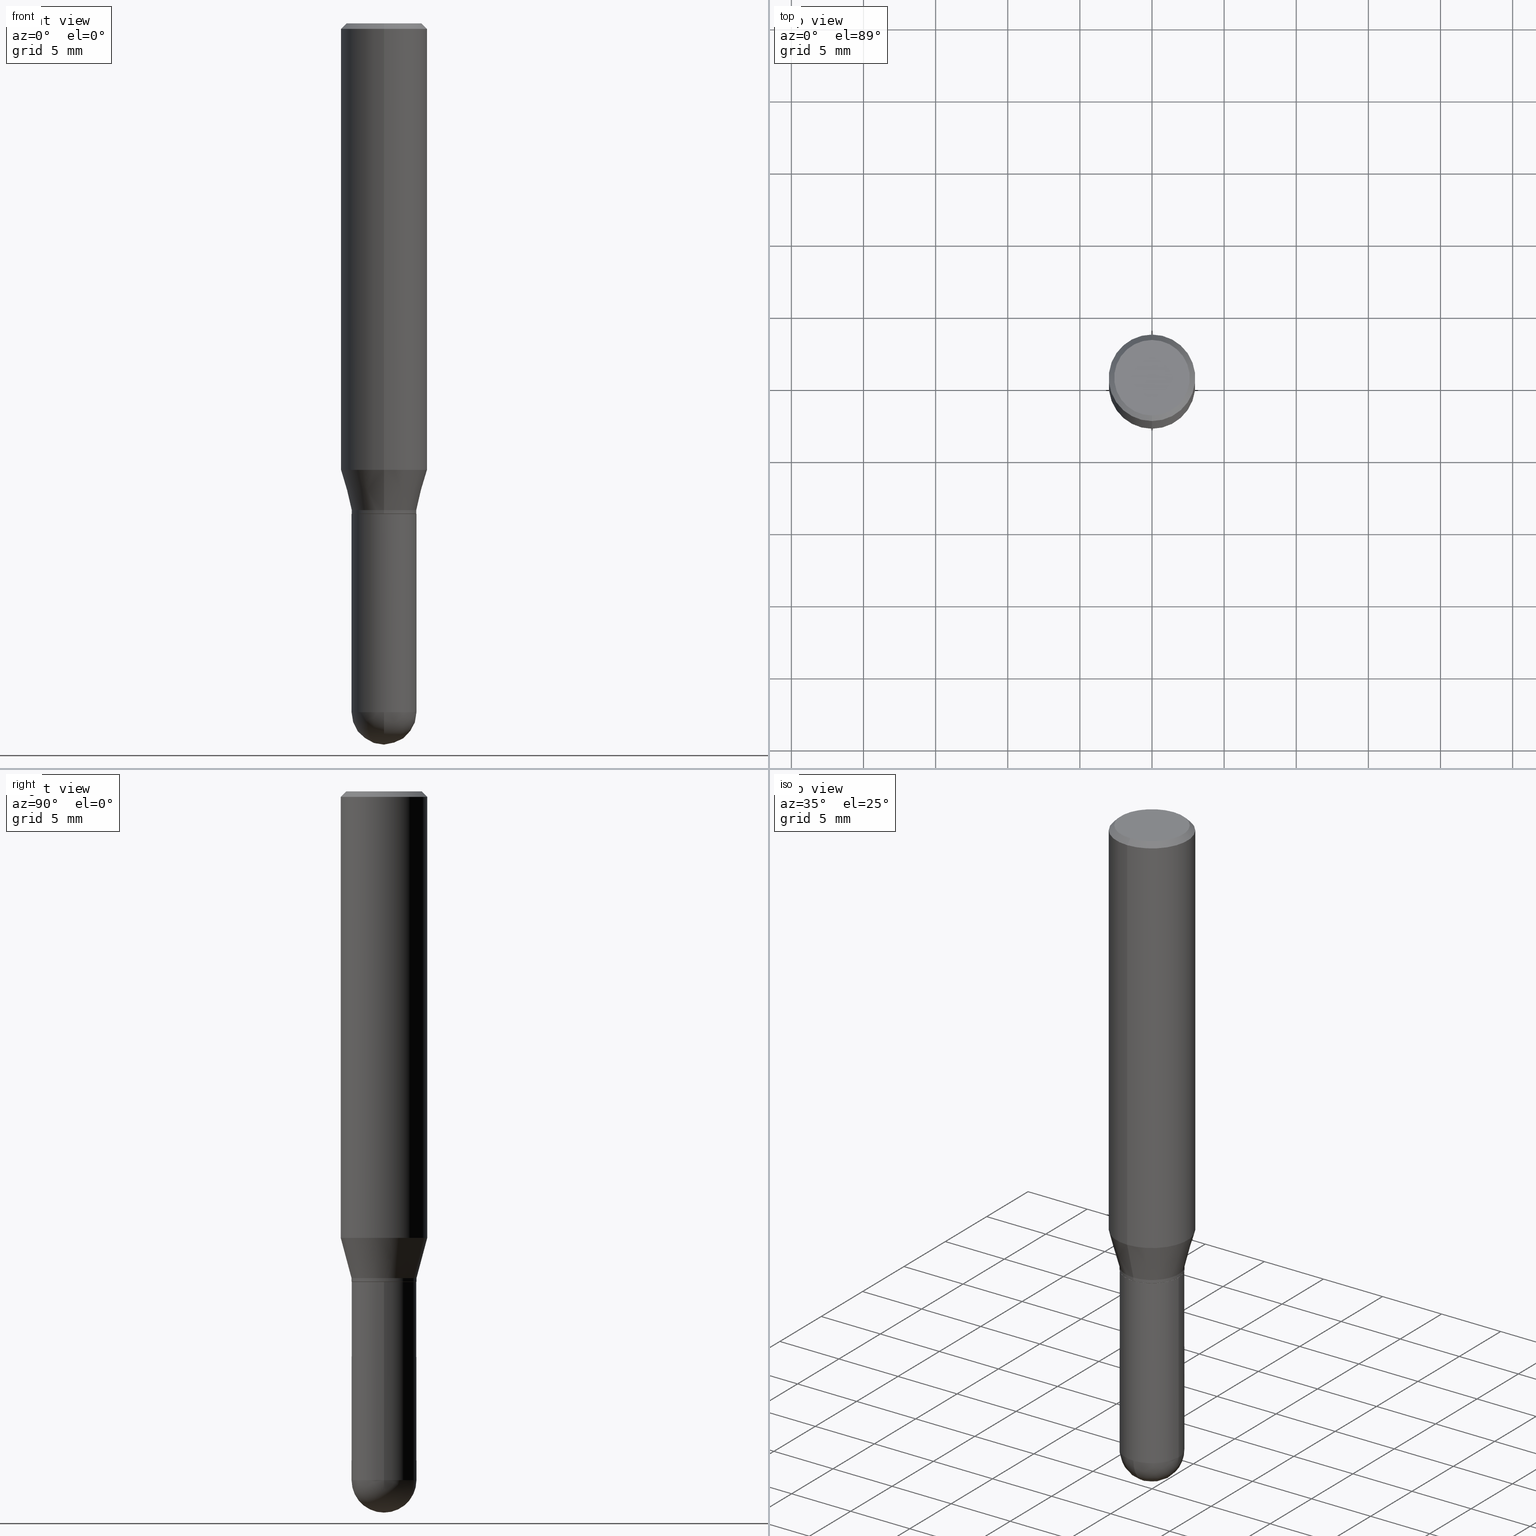
[diagram: canonical four-view strip — front | top / right | iso, engineering-drawing reading convention]
A machine part, canonical four-view strip (front | top / right | iso — engineering-drawing reading convention). The complete STEP part file that produces these views, byte-faithful:
ISO-10303-21;
HEADER;
FILE_DESCRIPTION (( 'STEP AP203' ),
    '1' );
FILE_NAME ('48571.STEP',
    '2024-03-08T13:05:01',
    ( '' ),
    ( '' ),
    'SwSTEP 2.0',
    'SolidWorks 2023',
    '' );
FILE_SCHEMA (( 'CONFIG_CONTROL_DESIGN' ));
ENDSEC;

DATA;
#1 = DIRECTION ( 'NONE',  ( -2.445468806185136597E-29, 3.491481338843145583E-15, 1.000000000000000000 ) ) ;
#2 = APPLICATION_CONTEXT ( 'configuration controlled 3d designs of mechanical parts and assemblies' ) ;
#3 = CARTESIAN_POINT ( 'NONE',  ( -8.246878922347479668E-16, -0.1180999999999999966, 4.122716881796092250E-16 ) ) ;
#4 = AXIS2_PLACEMENT_3D ( 'NONE', #236, #110, #316 ) ;
#5 = CARTESIAN_POINT ( 'NONE',  ( 2.980335345857895291E-29, -4.253640201139528702E-15, -1.218504501176718602 ) ) ;
#6 = CARTESIAN_POINT ( 'NONE',  ( -0.08859999999999999820, -4.989125480649882450E-15, -1.338600000000000012 ) ) ;
#7 = ORIENTED_EDGE ( 'NONE', *, *, #15, .T. ) ;
#8 = EDGE_CURVE ( 'NONE', #154, #424, #318, .T. ) ;
#9 = CYLINDRICAL_SURFACE ( 'NONE', #346, 0.1180999999999999966 ) ;
#10 = VECTOR ( 'NONE', #282, 39.37007874015748143 ) ;
#11 = ORIENTED_EDGE ( 'NONE', *, *, #114, .T. ) ;
#12 =( GEOMETRIC_REPRESENTATION_CONTEXT ( 3 ) GLOBAL_UNCERTAINTY_ASSIGNED_CONTEXT ( ( #250 ) ) GLOBAL_UNIT_ASSIGNED_CONTEXT ( ( #471, #400, #81 ) ) REPRESENTATION_CONTEXT ( 'NONE', 'WORKASPACE' ) );
#13 = ORIENTED_EDGE ( 'NONE', *, *, #458, .T. ) ;
#14 = PERSON_AND_ORGANIZATION_ROLE ( 'creator' ) ;
#15 = EDGE_CURVE ( 'NONE', #463, #63, #157, .T. ) ;
#16 = FACE_OUTER_BOUND ( 'NONE', #75, .T. ) ;
#17 = ORIENTED_EDGE ( 'NONE', *, *, #443, .F. ) ;
#18 = CARTESIAN_POINT ( 'NONE',  ( 0.08859999999999999820, -5.292387413418437689E-15, -1.338600000000000012 ) ) ;
#19 = AXIS2_PLACEMENT_3D ( 'NONE', #101, #212, #364 ) ;
#20 = PERSON_AND_ORGANIZATION ( #25, #131 ) ;
#21 = LINE ( 'NONE', #185, #474 ) ;
#22 = EDGE_LOOP ( 'NONE', ( #300, #169, #34, #70 ) ) ;
#23 = PLANE ( 'NONE',  #90 ) ;
#24 = ORIENTED_EDGE ( 'NONE', *, *, #452, .T. ) ;
#25 = PERSON ( 'UNSPECIFIED', 'UNSPECIFIED', 'UNSPECIFIED', ('UNSPECIFIED'), ('UNSPECIFIED'), ('UNSPECIFIED') ) ;
#26 = CC_DESIGN_PERSON_AND_ORGANIZATION_ASSIGNMENT ( #20, #188, ( #395 ) ) ;
#27 = APPROVAL_DATE_TIME ( #175, #501 ) ;
#28 = CARTESIAN_POINT ( 'NONE',  ( 3.274076452005480614E-29, -4.672877915302496500E-15, -1.338600000000000012 ) ) ;
#29 = EDGE_LOOP ( 'NONE', ( #313, #13, #190, #255 ) ) ;
#30 = DIRECTION ( 'NONE',  ( -6.982962677686264344E-15, -1.000000000000000000, 3.083349879982241481E-15 ) ) ;
#31 = AXIS2_PLACEMENT_3D ( 'NONE', #85, #390, #511 ) ;
#32 = AXIS2_PLACEMENT_3D ( 'NONE', #28, #303, #378 ) ;
#33 = DIRECTION ( 'NONE',  ( -2.445896049608158074E-29, 3.490869501944193410E-15, 1.000000000000000000 ) ) ;
#34 = ORIENTED_EDGE ( 'NONE', *, *, #132, .T. ) ;
#35 = DIRECTION ( 'NONE',  ( -2.445896049608158074E-29, 3.490869501944193410E-15, 1.000000000000000000 ) ) ;
#36 = EDGE_CURVE ( 'NONE', #424, #367, #126, .T. ) ;
#37 = VERTEX_POINT ( 'NONE', #507 ) ;
#38 = LINE ( 'NONE', #152, #354 ) ;
#39 = DIRECTION ( 'NONE',  ( -2.445896049608158354E-29, 3.490869501944193805E-15, 1.000000000000000000 ) ) ;
#40 = ADVANCED_FACE ( 'NONE', ( #432 ), #349, .F. ) ;
#41 = DIRECTION ( 'NONE',  ( -2.445896049608158074E-29, 3.490869501944193410E-15, 1.000000000000000000 ) ) ;
#42 = AXIS2_PLACEMENT_3D ( 'NONE', #508, #460, #30 ) ;
#43 = LOCAL_TIME ( 8, 5, 1.000000000000000000, #308 ) ;
#44 = DIRECTION ( 'NONE',  ( -2.445896049608158074E-29, 3.490869501944193410E-15, 1.000000000000000000 ) ) ;
#45 = FACE_OUTER_BOUND ( 'NONE', #337, .T. ) ;
#46 = CARTESIAN_POINT ( 'NONE',  ( -6.151990119041272080E-16, -0.08810000000000467457, -1.338599999999999790 ) ) ;
#47 = LINE ( 'NONE', #3, #472 ) ;
#48 = CONICAL_SURFACE ( 'NONE', #4, 0.1180999999999999966, 0.7853981633974485010 ) ;
#49 = LINE ( 'NONE', #205, #444 ) ;
#50 = CC_DESIGN_DATE_AND_TIME_ASSIGNMENT ( #104, #407, ( #427 ) ) ;
#51 = VERTEX_POINT ( 'NONE', #46 ) ;
#52 = VERTEX_POINT ( 'NONE', #201 ) ;
#53 = AXIS2_PLACEMENT_3D ( 'NONE', #485, #457, #449 ) ;
#54 = APPROVAL_PERSON_ORGANIZATION ( #365, #88, #487 ) ;
#55 = EDGE_CURVE ( 'NONE', #72, #383, #240, .T. ) ;
#56 = APPROVAL_ROLE ( '' ) ;
#57 = DIRECTION ( 'NONE',  ( -2.445896049608158074E-29, 3.490869501944193410E-15, 1.000000000000000000 ) ) ;
#58 = ADVANCED_BREP_SHAPE_REPRESENTATION ( '48571', ( #482, #479, #281 ), #12 ) ;
#59 = FACE_OUTER_BOUND ( 'NONE', #296, .T. ) ;
#60 = DIRECTION ( 'NONE',  ( 1.000000000000000000, 0.000000000000000000, 0.000000000000000000 ) ) ;
#61 = CARTESIAN_POINT ( 'NONE',  ( 4.589660035425309027E-29, -6.574486139531674551E-15, -1.879900000000000126 ) ) ;
#62 = EDGE_CURVE ( 'NONE', #52, #343, #47, .T. ) ;
#63 = VERTEX_POINT ( 'NONE', #129 ) ;
#64 = AXIS2_PLACEMENT_3D ( 'NONE', #119, #345, #276 ) ;
#65 = PERSON_AND_ORGANIZATION ( #25, #131 ) ;
#66 = LINE ( 'NONE', #382, #123 ) ;
#67 = ADVANCED_FACE ( 'NONE', ( #244 ), #89, .T. ) ;
#68 = ORIENTED_EDGE ( 'NONE', *, *, #237, .T. ) ;
#69 = APPROVAL_DATE_TIME ( #151, #88 ) ;
#70 = ORIENTED_EDGE ( 'NONE', *, *, #208, .F. ) ;
#71 = CARTESIAN_POINT ( 'NONE',  ( 8.391509709327078780E-16, 0.1180999999999957362, -1.218504501176718824 ) ) ;
#72 = VERTEX_POINT ( 'NONE', #6 ) ;
#73 = AXIS2_PLACEMENT_3D ( 'NONE', #78, #469, #384 ) ;
#74 = LINE ( 'NONE', #200, #241 ) ;
#75 = EDGE_LOOP ( 'NONE', ( #269, #339, #203, #186 ) ) ;
#76 = DIRECTION ( 'NONE',  ( -2.445468806185136597E-29, 3.491481338843145583E-15, 1.000000000000000000 ) ) ;
#77 = DIRECTION ( 'NONE',  ( -2.445896049608158074E-29, 3.490869501944193410E-15, 1.000000000000000000 ) ) ;
#78 = CARTESIAN_POINT ( 'NONE',  ( 4.589660035425309027E-29, -6.574486139531674551E-15, -1.879900000000000126 ) ) ;
#79 = CARTESIAN_POINT ( 'NONE',  ( 3.274076452005480614E-29, -4.672877915302496500E-15, -1.338600000000000012 ) ) ;
#80 = ADVANCED_FACE ( 'NONE', ( #398 ), #160, .T. ) ;
#81 =( NAMED_UNIT ( * ) SI_UNIT ( $, .STERADIAN. ) SOLID_ANGLE_UNIT ( ) );
#82 = AXIS2_PLACEMENT_3D ( 'NONE', #353, #163, #247 ) ;
#83 = AXIS2_PLACEMENT_3D ( 'NONE', #309, #33, #271 ) ;
#84 = DIRECTION ( 'NONE',  ( 1.000000000000000000, -6.982962677686270655E-15, 0.000000000000000000 ) ) ;
#85 = CARTESIAN_POINT ( 'NONE',  ( 6.186904932430358878E-16, 0.08859999999999532139, -1.338600000000000234 ) ) ;
#86 = EDGE_CURVE ( 'NONE', #37, #504, #252, .T. ) ;
#87 = LINE ( 'NONE', #473, #10 ) ;
#88 = APPROVAL ( #146, 'UNSPECIFIED' ) ;
#89 = CONICAL_SURFACE ( 'NONE', #96, 0.08859999999999991493, 0.2617993877991507401 ) ;
#90 = AXIS2_PLACEMENT_3D ( 'NONE', #224, #133, #366 ) ;
#91 = LOCAL_TIME ( 8, 5, 1.000000000000000000, #448 ) ;
#92 = APPLICATION_CONTEXT ( 'configuration controlled 3d designs of mechanical parts and assemblies' ) ;
#93 = EDGE_CURVE ( 'NONE', #63, #37, #360, .T. ) ;
#94 = APPLICATION_PROTOCOL_DEFINITION ( 'international standard', 'config_control_design', 1994, #92 ) ;
#95 = DIRECTION ( 'NONE',  ( -6.982962677686264344E-15, -1.000000000000000000, 3.083349879982241481E-15 ) ) ;
#96 = AXIS2_PLACEMENT_3D ( 'NONE', #426, #196, #468 ) ;
#97 = ORIENTED_EDGE ( 'NONE', *, *, #447, .T. ) ;
#98 = AXIS2_PLACEMENT_3D ( 'NONE', #217, #264, #418 ) ;
#99 = CALENDAR_DATE ( 2024, 8, 3 ) ;
#100 = DIRECTION ( 'NONE',  ( 1.000000000000000000, -6.982962677686270655E-15, 0.000000000000000000 ) ) ;
#101 = CARTESIAN_POINT ( 'NONE',  ( 3.273504543959423913E-29, -4.673696920175434737E-15, -1.338600000000000012 ) ) ;
#102 = DIRECTION ( 'NONE',  ( -2.445896049608158074E-29, 3.490869501944193410E-15, 1.000000000000000000 ) ) ;
#103 = VERTEX_POINT ( 'NONE', #161 ) ;
#104 = DATE_AND_TIME ( #99, #388 ) ;
#105 = CARTESIAN_POINT ( 'NONE',  ( -6.186904932429700179E-16, -0.08860000000000461950, -1.338099999999999845 ) ) ;
#106 = ORIENTED_EDGE ( 'NONE', *, *, #476, .T. ) ;
#107 = MECHANICAL_CONTEXT ( 'NONE', #92, 'mechanical' ) ;
#108 = EDGE_LOOP ( 'NONE', ( #363, #459, #194, #462 ) ) ;
#109 = ORIENTED_EDGE ( 'NONE', *, *, #452, .F. ) ;
#110 = DIRECTION ( 'NONE',  ( 2.445896049608158074E-29, -3.490869501944193410E-15, -1.000000000000000000 ) ) ;
#111 = VERTEX_POINT ( 'NONE', #397 ) ;
#112 = CIRCLE ( 'NONE', #233, 0.08809999999999999776 ) ;
#113 = CIRCLE ( 'NONE', #291, 0.1030999999999999833 ) ;
#114 = EDGE_CURVE ( 'NONE', #214, #145, #304, .T. ) ;
#115 = DIRECTION ( 'NONE',  ( -6.982962677686265133E-15, -1.000000000000000000, 3.100849027995758518E-15 ) ) ;
#116 = EDGE_LOOP ( 'NONE', ( #155, #312, #24, #344 ) ) ;
#117 = FACE_OUTER_BOUND ( 'NONE', #270, .T. ) ;
#118 = DIRECTION ( 'NONE',  ( -2.445896049608158074E-29, 3.490869501944193410E-15, 1.000000000000000000 ) ) ;
#119 = CARTESIAN_POINT ( 'NONE',  ( 0.000000000000000000, 0.000000000000000000, 0.000000000000000000 ) ) ;
#120 = EDGE_CURVE ( 'NONE', #111, #103, #87, .T. ) ;
#121 = FACE_OUTER_BOUND ( 'NONE', #29, .T. ) ;
#122 = DIRECTION ( 'NONE',  ( -6.982962677686265922E-15, -1.000000000000000000, 3.469747663417777397E-15 ) ) ;
#123 = VECTOR ( 'NONE', #229, 39.37007874015748143 ) ;
#124 = DIRECTION ( 'NONE',  ( 1.839019923739603471E-15, 0.2588190451025254024, 0.9659258262890670910 ) ) ;
#125 = FACE_OUTER_BOUND ( 'NONE', #148, .T. ) ;
#126 = LINE ( 'NONE', #324, #272 ) ;
#127 = EDGE_CURVE ( 'NONE', #235, #504, #218, .T. ) ;
#128 = CARTESIAN_POINT ( 'NONE',  ( -0.08859999999999998432, -4.989125480649882450E-15, -1.879899999999999904 ) ) ;
#129 = CARTESIAN_POINT ( 'NONE',  ( -6.295408638834025049E-16, -0.08860000000000653464, -1.879899999999999460 ) ) ;
#130 = AXIS2_PLACEMENT_3D ( 'NONE', #280, #1, #284 ) ;
#131 = ORGANIZATION ( 'UNSPECIFIED', 'UNSPECIFIED', '' ) ;
#132 = EDGE_CURVE ( 'NONE', #51, #195, #49, .T. ) ;
#133 = DIRECTION ( 'NONE',  ( 2.445896049608157514E-29, -3.490869501944193805E-15, -1.000000000000000000 ) ) ;
#134 = PRODUCT_RELATED_PRODUCT_CATEGORY ( 'detail', '', ( #221 ) ) ;
#135 = EDGE_CURVE ( 'NONE', #51, #111, #112, .T. ) ;
#136 = PERSON_AND_ORGANIZATION ( #25, #131 ) ;
#137 = DIRECTION ( 'NONE',  ( -4.851104656540965064E-15, -0.7071067811865501263, -0.7071067811865449082 ) ) ;
#138 = CIRCLE ( 'NONE', #197, 0.08859999999999991493 ) ;
#139 = ORIENTED_EDGE ( 'NONE', *, *, #135, .F. ) ;
#140 = DATE_AND_TIME ( #263, #249 ) ;
#141 = FACE_OUTER_BOUND ( 'NONE', #174, .T. ) ;
#142 = EDGE_CURVE ( 'NONE', #111, #51, #285, .T. ) ;
#143 = COORDINATED_UNIVERSAL_TIME_OFFSET ( 5, 0, .BEHIND. ) ;
#144 = CARTESIAN_POINT ( 'NONE',  ( 3.249617491509398652E-29, -4.637969220283055962E-15, -1.328600000000000225 ) ) ;
#145 = VERTEX_POINT ( 'NONE', #470 ) ;
#146 = APPROVAL_STATUS ( 'not_yet_approved' ) ;
#147 = PLANE ( 'NONE',  #32 ) ;
#148 = EDGE_LOOP ( 'NONE', ( #180, #422, #306, #465 ) ) ;
#149 = AXIS2_PLACEMENT_3D ( 'NONE', #144, #102, #95 ) ;
#150 = CC_DESIGN_APPROVAL ( #501, ( #395 ) ) ;
#151 = DATE_AND_TIME ( #302, #43 ) ;
#152 = CARTESIAN_POINT ( 'NONE',  ( 0.08859999999999998432, -6.186904932430030515E-16, 4.320292623355198064E-30 ) ) ;
#153 = ADVANCED_FACE ( 'NONE', ( #121 ), #9, .T. ) ;
#154 = VERTEX_POINT ( 'NONE', #371 ) ;
#155 = ORIENTED_EDGE ( 'NONE', *, *, #476, .F. ) ;
#156 = ORIENTED_EDGE ( 'NONE', *, *, #297, .T. ) ;
#157 = CIRCLE ( 'NONE', #392, 0.08859999999999998432 ) ;
#158 = CARTESIAN_POINT ( 'NONE',  ( 6.246212832853775766E-46, -8.914816263084806715E-32, -2.553752369751953708E-17 ) ) ;
#159 = ADVANCED_FACE ( 'NONE', ( #260 ), #335, .T. ) ;
#160 = CYLINDRICAL_SURFACE ( 'NONE', #455, 0.08859999999999991493 ) ;
#161 = CARTESIAN_POINT ( 'NONE',  ( 6.295408638834805036E-16, 0.08859999999999519649, -1.338100000000000511 ) ) ;
#162 = CONICAL_SURFACE ( 'NONE', #42, 0.08859999999999991493, 0.2617993877991507401 ) ;
#163 = DIRECTION ( 'NONE',  ( 1.000000000000000000, -6.982962677686265922E-15, 4.883557194083112340E-29 ) ) ;
#164 = ADVANCED_FACE ( 'NONE', ( #380 ), #341, .T. ) ;
#165 = DIRECTION ( 'NONE',  ( -2.445896049608158074E-29, 3.490869501944193410E-15, 1.000000000000000000 ) ) ;
#166 = DIRECTION ( 'NONE',  ( -4.937700262164631661E-15, -0.7071067811865571207, 0.7071067811865379138 ) ) ;
#167 = VECTOR ( 'NONE', #124, 39.37007874015748143 ) ;
#168 = AXIS2_PLACEMENT_3D ( 'NONE', #425, #76, #467 ) ;
#169 = ORIENTED_EDGE ( 'NONE', *, *, #142, .T. ) ;
#170 = ADVANCED_FACE ( 'NONE', ( #227 ), #162, .T. ) ;
#171 = EDGE_LOOP ( 'NONE', ( #11, #288 ) ) ;
#172 = COORDINATED_UNIVERSAL_TIME_OFFSET ( 5, 0, .BEHIND. ) ;
#173 = CARTESIAN_POINT ( 'NONE',  ( 7.723156721521010848E-16, 0.1030999999999999833, -3.854461693479658168E-16 ) ) ;
#174 = EDGE_LOOP ( 'NONE', ( #357, #421, #334, #428 ) ) ;
#175 = DATE_AND_TIME ( #381, #91 ) ;
#176 = DIRECTION ( 'NONE',  ( -7.105427357600999492E-15, -1.000000000000000000, 0.000000000000000000 ) ) ;
#177 = CLOSED_SHELL ( 'NONE', ( #80, #391, #164, #489, #170, #67, #153, #401, #245, #283, #226, #159 ) ) ;
#178 = AXIS2_PLACEMENT_3D ( 'NONE', #415, #483, #100 ) ;
#179 = EDGE_CURVE ( 'NONE', #454, #154, #254, .T. ) ;
#180 = ORIENTED_EDGE ( 'NONE', *, *, #414, .T. ) ;
#181 = APPROVAL_DATE_TIME ( #140, #231 ) ;
#182 = CARTESIAN_POINT ( 'NONE',  ( 6.246212832853775766E-46, -8.914816263084806715E-32, -2.553752369751953708E-17 ) ) ;
#183 = ORIENTED_EDGE ( 'NONE', *, *, #8, .T. ) ;
#184 = PERSON_AND_ORGANIZATION_ROLE ( 'creator' ) ;
#185 = CARTESIAN_POINT ( 'NONE',  ( -8.102248135368174406E-16, -0.1181000000000000522, -0.01499999999999961434 ) ) ;
#186 = ORIENTED_EDGE ( 'NONE', *, *, #202, .F. ) ;
#187 = ADVANCED_FACE ( 'NONE', ( #16 ), #373, .T. ) ;
#188 = PERSON_AND_ORGANIZATION_ROLE ( 'design_supplier' ) ;
#189 = CARTESIAN_POINT ( 'NONE',  ( 3.272853503980677188E-29, -4.671132480551525183E-15, -1.338100000000000067 ) ) ;
#190 = ORIENTED_EDGE ( 'NONE', *, *, #62, .T. ) ;
#191 = AXIS2_PLACEMENT_3D ( 'NONE', #267, #222, #376 ) ;
#192 = CC_DESIGN_SECURITY_CLASSIFICATION ( #374, ( #395 ) ) ;
#193 = EDGE_CURVE ( 'NONE', #463, #72, #66, .T. ) ;
#194 = ORIENTED_EDGE ( 'NONE', *, *, #86, .F. ) ;
#195 = VERTEX_POINT ( 'NONE', #105 ) ;
#196 = DIRECTION ( 'NONE',  ( -2.445896049608158074E-29, 3.490869501944193410E-15, 1.000000000000000000 ) ) ;
#197 = AXIS2_PLACEMENT_3D ( 'NONE', #189, #442, #261 ) ;
#198 = CYLINDRICAL_SURFACE ( 'NONE', #64, 0.08859999999999998432 ) ;
#199 = DIRECTION ( 'NONE',  ( 1.000000000000000000, -6.982962677686270655E-15, 0.000000000000000000 ) ) ;
#200 = CARTESIAN_POINT ( 'NONE',  ( -6.186904932430024598E-16, -0.08859999999999991493, 3.092910378722552307E-16 ) ) ;
#201 = CARTESIAN_POINT ( 'NONE',  ( -8.246878922347182859E-16, -0.1181000000000042710, -1.218504501176718158 ) ) ;
#202 = EDGE_CURVE ( 'NONE', #504, #463, #293, .T. ) ;
#203 = ORIENTED_EDGE ( 'NONE', *, *, #15, .F. ) ;
#204 = AXIS2_PLACEMENT_3D ( 'NONE', #5, #165, #122 ) ;
#205 = CARTESIAN_POINT ( 'NONE',  ( -6.151990119041272080E-16, -0.08810000000000467457, -1.338599999999999790 ) ) ;
#206 = CARTESIAN_POINT ( 'NONE',  ( 0.000000000000000000, 0.000000000000000000, 0.000000000000000000 ) ) ;
#207 = DIRECTION ( 'NONE',  ( -6.982962677686264344E-15, -1.000000000000000000, 3.490869501944193410E-15 ) ) ;
#208 = EDGE_CURVE ( 'NONE', #103, #195, #406, .T. ) ;
#209 = ORIENTED_EDGE ( 'NONE', *, *, #414, .F. ) ;
#210 = CC_DESIGN_APPROVAL ( #88, ( #427 ) ) ;
#211 = EDGE_LOOP ( 'NONE', ( #419, #387, #326, #359 ) ) ;
#212 = DIRECTION ( 'NONE',  ( -2.445468806185136597E-29, 3.491481338843145583E-15, 1.000000000000000000 ) ) ;
#213 = CARTESIAN_POINT ( 'NONE',  ( 8.246878922347483612E-16, 0.1180999999999999411, -0.01500000000000043833 ) ) ;
#214 = VERTEX_POINT ( 'NONE', #173 ) ;
#215 = DIRECTION ( 'NONE',  ( -1.807323732225332900E-15, -0.2588190451025185745, 0.9659258262890687563 ) ) ;
#216 = DIRECTION ( 'NONE',  ( 0.000000000000000000, 0.000000000000000000, 1.000000000000000000 ) ) ;
#217 = CARTESIAN_POINT ( 'NONE',  ( 3.668844074412243487E-31, -5.236304252916299458E-17, -0.01500000000000002547 ) ) ;
#218 = CIRCLE ( 'NONE', #82, 0.08859999999999998432 ) ;
#219 = CIRCLE ( 'NONE', #464, 0.08859999999999998432 ) ;
#220 = ORIENTED_EDGE ( 'NONE', *, *, #256, .F. ) ;
#221 = PRODUCT ( '48571', '48571', '', ( #107 ) ) ;
#222 = DIRECTION ( 'NONE',  ( 2.445896049608158074E-29, -3.490869501944193410E-15, -1.000000000000000000 ) ) ;
#223 = SHAPE_DEFINITION_REPRESENTATION ( #278, #58 ) ;
#224 = CARTESIAN_POINT ( 'NONE',  ( 7.199434520694539070E-16, 0.1030999999999999833, -3.726774074992060082E-16 ) ) ;
#225 = EDGE_LOOP ( 'NONE', ( #259, #106, #375, #109 ) ) ;
#226 = ADVANCED_FACE ( 'NONE', ( #488 ), #386, .T. ) ;
#227 = FACE_OUTER_BOUND ( 'NONE', #498, .T. ) ;
#228 = APPROVAL_ROLE ( '' ) ;
#229 = DIRECTION ( 'NONE',  ( -2.445468806185136877E-29, 3.491481338843145188E-15, 1.000000000000000000 ) ) ;
#230 = ORIENTED_EDGE ( 'NONE', *, *, #256, .T. ) ;
#231 = APPROVAL ( #257, 'UNSPECIFIED' ) ;
#232 = ORIENTED_EDGE ( 'NONE', *, *, #55, .F. ) ;
#233 = AXIS2_PLACEMENT_3D ( 'NONE', #315, #118, #277 ) ;
#234 = AXIS2_PLACEMENT_3D ( 'NONE', #510, #41, #502 ) ;
#235 = VERTEX_POINT ( 'NONE', #268 ) ;
#236 = CARTESIAN_POINT ( 'NONE',  ( 3.668844074412243487E-31, -5.236304252916299458E-17, -0.01500000000000002547 ) ) ;
#237 = EDGE_CURVE ( 'NONE', #145, #343, #21, .T. ) ;
#238 = DIRECTION ( 'NONE',  ( -6.982962677686265922E-15, -1.000000000000000000, 3.490869501944193410E-15 ) ) ;
#239 = DIRECTION ( 'NONE',  ( -2.445896049608158074E-29, 3.490869501944193410E-15, 1.000000000000000000 ) ) ;
#240 = CIRCLE ( 'NONE', #405, 0.08859999999999999820 ) ;
#241 = VECTOR ( 'NONE', #323, 39.37007874015748143 ) ;
#242 = DIRECTION ( 'NONE',  ( -2.445468806185136877E-29, 3.491481338843145188E-15, 1.000000000000000000 ) ) ;
#243 = DIRECTION ( 'NONE',  ( -6.982962677686264344E-15, -1.000000000000000000, 3.490869501944193410E-15 ) ) ;
#244 = FACE_OUTER_BOUND ( 'NONE', #484, .T. ) ;
#245 = ADVANCED_FACE ( 'NONE', ( #420 ), #23, .F. ) ;
#246 = DESIGN_CONTEXT ( 'detailed design', #2, 'design' ) ;
#247 = DIRECTION ( 'NONE',  ( 6.982962677686265133E-15, 1.000000000000000000, 0.000000000000000000 ) ) ;
#248 = VECTOR ( 'NONE', #262, 39.37007874015748143 ) ;
#249 = LOCAL_TIME ( 8, 5, 1.000000000000000000, #172 ) ;
#250 = UNCERTAINTY_MEASURE_WITH_UNIT (LENGTH_MEASURE( 1.000000000000000082E-05 ), #471, 'distance_accuracy_value', 'NONE');
#251 = EDGE_CURVE ( 'NONE', #145, #214, #113, .T. ) ;
#252 = CIRCLE ( 'NONE', #130, 0.08859999999999998432 ) ;
#253 = CARTESIAN_POINT ( 'NONE',  ( 8.391509709327082724E-16, 0.1180999999999999411, -0.01500000000000043833 ) ) ;
#254 = CIRCLE ( 'NONE', #417, 0.08859999999999991493 ) ;
#255 = ORIENTED_EDGE ( 'NONE', *, *, #361, .F. ) ;
#256 = EDGE_CURVE ( 'NONE', #454, #52, #328, .T. ) ;
#257 = APPROVAL_STATUS ( 'not_yet_approved' ) ;
#258 = DIRECTION ( 'NONE',  ( -2.445896049608158074E-29, 3.490869501944193410E-15, 1.000000000000000000 ) ) ;
#259 = ORIENTED_EDGE ( 'NONE', *, *, #350, .T. ) ;
#260 = FACE_OUTER_BOUND ( 'NONE', #116, .T. ) ;
#261 = DIRECTION ( 'NONE',  ( -6.982962677686264344E-15, -1.000000000000000000, 3.083349879982241481E-15 ) ) ;
#262 = DIRECTION ( 'NONE',  ( -2.445896049608158354E-29, 3.490869501944193805E-15, 1.000000000000000000 ) ) ;
#263 = CALENDAR_DATE ( 2024, 8, 3 ) ;
#264 = DIRECTION ( 'NONE',  ( -2.445896049608158074E-29, 3.490869501944193410E-15, 1.000000000000000000 ) ) ;
#265 = CLOSED_SHELL ( 'NONE', ( #402, #187, #40, #437, #435 ) ) ;
#266 = ORIENTED_EDGE ( 'NONE', *, *, #86, .T. ) ;
#267 = CARTESIAN_POINT ( 'NONE',  ( 3.668844074412243487E-31, -5.236304252916299458E-17, -0.01500000000000002547 ) ) ;
#268 = CARTESIAN_POINT ( 'NONE',  ( 4.810116958314376734E-29, -6.878406200832954656E-15, -1.968500000000000139 ) ) ;
#269 = ORIENTED_EDGE ( 'NONE', *, *, #127, .F. ) ;
#270 = EDGE_LOOP ( 'NONE', ( #275, #7, #389, #493, #232 ) ) ;
#271 = DIRECTION ( 'NONE',  ( -6.982962677686265922E-15, -1.000000000000000000, 3.487819265831411744E-15 ) ) ;
#272 = VECTOR ( 'NONE', #355, 39.37007874015748143 ) ;
#273 = ORIENTED_EDGE ( 'NONE', *, *, #481, .T. ) ;
#274 = VECTOR ( 'NONE', #215, 39.37007874015748854 ) ;
#275 = ORIENTED_EDGE ( 'NONE', *, *, #193, .F. ) ;
#276 = DIRECTION ( 'NONE',  ( 1.000000000000000000, -6.982962677686265922E-15, 4.876176775795935232E-29 ) ) ;
#277 = DIRECTION ( 'NONE',  ( -6.982962677686265133E-15, -1.000000000000000000, 3.100849027995758518E-15 ) ) ;
#278 = PRODUCT_DEFINITION_SHAPE ( 'NONE', 'NONE',  #427 ) ;
#279 = CYLINDRICAL_SURFACE ( 'NONE', #433, 0.1180999999999999966 ) ;
#280 = CARTESIAN_POINT ( 'NONE',  ( 4.597236808747438107E-29, -6.563635768891228653E-15, -1.879899999999999904 ) ) ;
#281 = AXIS2_PLACEMENT_3D ( 'NONE', #413, #216, #60 ) ;
#282 = DIRECTION ( 'NONE',  ( 5.024295867788147587E-15, 0.7071067811865620056, 0.7071067811865330288 ) ) ;
#283 = ADVANCED_FACE ( 'NONE', ( #59 ), #147, .F. ) ;
#284 = DIRECTION ( 'NONE',  ( 1.000000000000000000, -6.982962677686270655E-15, 0.000000000000000000 ) ) ;
#285 = CIRCLE ( 'NONE', #431, 0.08809999999999999776 ) ;
#286 = CC_DESIGN_PERSON_AND_ORGANIZATION_ASSIGNMENT ( #336, #495, ( #221 ) ) ;
#287 = LOCAL_TIME ( 8, 5, 1.000000000000000000, #143 ) ;
#288 = ORIENTED_EDGE ( 'NONE', *, *, #251, .T. ) ;
#289 = DIRECTION ( 'NONE',  ( -6.982962677686265922E-15, -1.000000000000000000, 3.490869501944193410E-15 ) ) ;
#290 = COORDINATED_UNIVERSAL_TIME_OFFSET ( 5, 0, .BEHIND. ) ;
#291 = AXIS2_PLACEMENT_3D ( 'NONE', #182, #496, #289 ) ;
#292 = CARTESIAN_POINT ( 'NONE',  ( 3.274076452005480614E-29, -4.672877915302496500E-15, -1.338600000000000012 ) ) ;
#293 = CIRCLE ( 'NONE', #178, 0.08859999999999998432 ) ;
#294 = CARTESIAN_POINT ( 'NONE',  ( 6.295408638834479630E-16, 0.08859999999999991493, -3.092910378722552307E-16 ) ) ;
#295 = CARTESIAN_POINT ( 'NONE',  ( 3.274076452005480614E-29, -4.672877915302496500E-15, -1.338600000000000012 ) ) ;
#296 = EDGE_LOOP ( 'NONE', ( #139, #310 ) ) ;
#297 = EDGE_CURVE ( 'NONE', #154, #454, #500, .T. ) ;
#298 = CALENDAR_DATE ( 2024, 8, 3 ) ;
#299 = DIRECTION ( 'NONE',  ( -6.982962677686264344E-15, -1.000000000000000000, 3.083349879982241481E-15 ) ) ;
#300 = ORIENTED_EDGE ( 'NONE', *, *, #120, .F. ) ;
#301 = DIRECTION ( 'NONE',  ( -6.982962677686265922E-15, -1.000000000000000000, 3.490869501944193410E-15 ) ) ;
#302 = CALENDAR_DATE ( 2024, 8, 3 ) ;
#303 = DIRECTION ( 'NONE',  ( -2.445896049608157514E-29, 3.490869501944193805E-15, 1.000000000000000000 ) ) ;
#304 = CIRCLE ( 'NONE', #440, 0.1030999999999999833 ) ;
#305 = CIRCLE ( 'NONE', #234, 0.1180999999999999966 ) ;
#306 = ORIENTED_EDGE ( 'NONE', *, *, #447, .F. ) ;
#307 = CC_DESIGN_APPROVAL ( #231, ( #374 ) ) ;
#308 = COORDINATED_UNIVERSAL_TIME_OFFSET ( 5, 0, .BEHIND. ) ;
#309 = CARTESIAN_POINT ( 'NONE',  ( 3.668844074412243487E-31, -5.236304252916299458E-17, -0.01500000000000002547 ) ) ;
#310 = ORIENTED_EDGE ( 'NONE', *, *, #142, .F. ) ;
#311 = FACE_OUTER_BOUND ( 'NONE', #211, .T. ) ;
#312 = ORIENTED_EDGE ( 'NONE', *, *, #208, .T. ) ;
#313 = ORIENTED_EDGE ( 'NONE', *, *, #36, .F. ) ;
#314 = CYLINDRICAL_SURFACE ( 'NONE', #168, 0.08859999999999998432 ) ;
#315 = CARTESIAN_POINT ( 'NONE',  ( 3.274076452005480614E-29, -4.672877915302496500E-15, -1.338600000000000012 ) ) ;
#316 = DIRECTION ( 'NONE',  ( 6.982962677686265922E-15, 1.000000000000000000, -3.487819265831411744E-15 ) ) ;
#317 = DIRECTION ( 'NONE',  ( -6.982962677686265133E-15, -1.000000000000000000, 3.100849027995758518E-15 ) ) ;
#318 = LINE ( 'NONE', #434, #167 ) ;
#319 = CIRCLE ( 'NONE', #98, 0.1180999999999999966 ) ;
#320 = LENGTH_MEASURE_WITH_UNIT ( LENGTH_MEASURE( 0.02539999999999999897 ), #429 );
#321 = DIRECTION ( 'NONE',  ( -2.445468806185136597E-29, 3.491481338843145583E-15, 1.000000000000000000 ) ) ;
#322 = DIRECTION ( 'NONE',  ( -2.445896049608158074E-29, 3.490869501944193410E-15, 1.000000000000000000 ) ) ;
#323 = DIRECTION ( 'NONE',  ( -2.445896049608158354E-29, 3.490869501944193805E-15, 1.000000000000000000 ) ) ;
#324 = CARTESIAN_POINT ( 'NONE',  ( 8.391509709326781971E-16, 0.1180999999999999966, -4.122716881796092250E-16 ) ) ;
#325 = ORIENTED_EDGE ( 'NONE', *, *, #55, .T. ) ;
#326 = ORIENTED_EDGE ( 'NONE', *, *, #370, .T. ) ;
#327 = DATE_AND_TIME ( #298, #287 ) ;
#328 = LINE ( 'NONE', #411, #274 ) ;
#329 = ORIENTED_EDGE ( 'NONE', *, *, #481, .F. ) ;
#330 = PERSON_AND_ORGANIZATION ( #25, #131 ) ;
#331 = AXIS2_PLACEMENT_3D ( 'NONE', #292, #57, #492 ) ;
#332 = DIRECTION ( 'NONE',  ( -1.000000000000000000, 7.105427357601001070E-15, -4.926315508542082329E-29 ) ) ;
#333 = APPROVAL_PERSON_ORGANIZATION ( #377, #231, #56 ) ;
#334 = ORIENTED_EDGE ( 'NONE', *, *, #350, .F. ) ;
#335 = CYLINDRICAL_SURFACE ( 'NONE', #486, 0.08859999999999991493 ) ;
#336 = PERSON_AND_ORGANIZATION ( #25, #131 ) ;
#337 = EDGE_LOOP ( 'NONE', ( #416, #412, #329, #17, #266 ) ) ;
#338 = DIRECTION ( 'NONE',  ( -6.982962677686264344E-15, -1.000000000000000000, 3.083349879982241481E-15 ) ) ;
#339 = ORIENTED_EDGE ( 'NONE', *, *, #358, .T. ) ;
#340 = PERSON_AND_ORGANIZATION_ROLE ( 'classification_officer' ) ;
#341 = CONICAL_SURFACE ( 'NONE', #191, 0.1180999999999999966, 0.7853981633974485010 ) ;
#342 = ORIENTED_EDGE ( 'NONE', *, *, #251, .F. ) ;
#343 = VERTEX_POINT ( 'NONE', #453 ) ;
#344 = ORIENTED_EDGE ( 'NONE', *, *, #297, .F. ) ;
#345 = DIRECTION ( 'NONE',  ( -2.445468806185136597E-29, 3.491481338843145583E-15, 1.000000000000000000 ) ) ;
#346 = AXIS2_PLACEMENT_3D ( 'NONE', #438, #494, #301 ) ;
#347 = CARTESIAN_POINT ( 'NONE',  ( 4.597236808747438107E-29, -6.563635768891228653E-15, -1.879899999999999904 ) ) ;
#348 = CARTESIAN_POINT ( 'NONE',  ( 3.249617491509398652E-29, -4.637969220283055962E-15, -1.328600000000000225 ) ) ;
#349 = PLANE ( 'NONE',  #31 ) ;
#350 = EDGE_CURVE ( 'NONE', #195, #103, #138, .T. ) ;
#351 = CARTESIAN_POINT ( 'NONE',  ( 0.000000000000000000, 0.000000000000000000, 0.000000000000000000 ) ) ;
#352 = DIRECTION ( 'NONE',  ( -6.982962677686265922E-15, -1.000000000000000000, 3.490869501944193410E-15 ) ) ;
#353 = CARTESIAN_POINT ( 'NONE',  ( 4.589660035425309027E-29, -6.574486139531674551E-15, -1.879900000000000126 ) ) ;
#354 = VECTOR ( 'NONE', #242, 39.37007874015748143 ) ;
#355 = DIRECTION ( 'NONE',  ( -2.445896049608158354E-29, 3.490869501944193805E-15, 1.000000000000000000 ) ) ;
#356 = CC_DESIGN_PERSON_AND_ORGANIZATION_ASSIGNMENT ( #65, #14, ( #427 ) ) ;
#357 = ORIENTED_EDGE ( 'NONE', *, *, #135, .T. ) ;
#358 = EDGE_CURVE ( 'NONE', #235, #63, #219, .T. ) ;
#359 = ORIENTED_EDGE ( 'NONE', *, *, #361, .T. ) ;
#360 = CIRCLE ( 'NONE', #385, 0.08859999999999998432 ) ;
#361 = EDGE_CURVE ( 'NONE', #367, #343, #319, .T. ) ;
#362 = CIRCLE ( 'NONE', #204, 0.1180999999999999966 ) ;
#363 = ORIENTED_EDGE ( 'NONE', *, *, #358, .F. ) ;
#364 = DIRECTION ( 'NONE',  ( 1.000000000000000000, -6.982962677686269077E-15, 0.000000000000000000 ) ) ;
#365 = PERSON_AND_ORGANIZATION ( #25, #131 ) ;
#366 = DIRECTION ( 'NONE',  ( 6.982962677686265922E-15, 1.000000000000000000, -3.490869501944193805E-15 ) ) ;
#367 = VERTEX_POINT ( 'NONE', #253 ) ;
#368 = SECURITY_CLASSIFICATION_LEVEL ( 'unclassified' ) ;
#369 = DIRECTION ( 'NONE',  ( 4.937700262164548831E-15, 0.7071067811865452413, -0.7071067811865497932 ) ) ;
#370 = EDGE_CURVE ( 'NONE', #214, #367, #409, .T. ) ;
#371 = CARTESIAN_POINT ( 'NONE',  ( 7.343459174080941908E-16, 0.08859999999999526588, -1.328600000000000447 ) ) ;
#372 = PERSON_AND_ORGANIZATION ( #25, #131 ) ;
#373 = SPHERICAL_SURFACE ( 'NONE', #53, 0.08859999999999998432 ) ;
#374 = SECURITY_CLASSIFICATION ( '', '', #368 ) ;
#375 = ORIENTED_EDGE ( 'NONE', *, *, #179, .F. ) ;
#376 = DIRECTION ( 'NONE',  ( 6.982962677686265922E-15, 1.000000000000000000, -3.487819265831411744E-15 ) ) ;
#377 = PERSON_AND_ORGANIZATION ( #25, #131 ) ;
#378 = DIRECTION ( 'NONE',  ( -6.982962677686265922E-15, -1.000000000000000000, 3.490869501944193805E-15 ) ) ;
#379 = ORIENTED_EDGE ( 'NONE', *, *, #179, .T. ) ;
#380 = FACE_OUTER_BOUND ( 'NONE', #441, .T. ) ;
#381 = CALENDAR_DATE ( 2024, 8, 3 ) ;
#382 = CARTESIAN_POINT ( 'NONE',  ( -0.08859999999999998432, 6.295408638834486533E-16, -4.358176489965845566E-30 ) ) ;
#383 = VERTEX_POINT ( 'NONE', #18 ) ;
#384 = DIRECTION ( 'NONE',  ( 6.982962677686265133E-15, 1.000000000000000000, -3.083349879982239114E-15 ) ) ;
#385 = AXIS2_PLACEMENT_3D ( 'NONE', #475, #393, #199 ) ;
#386 = CONICAL_SURFACE ( 'NONE', #331, 0.08809999999999999776, 0.7853981633974653764 ) ;
#387 = ORIENTED_EDGE ( 'NONE', *, *, #114, .F. ) ;
#388 = LOCAL_TIME ( 8, 5, 1.000000000000000000, #290 ) ;
#389 = ORIENTED_EDGE ( 'NONE', *, *, #93, .T. ) ;
#390 = DIRECTION ( 'NONE',  ( 2.438088387897960049E-29, -3.491481338843145188E-15, -1.000000000000000000 ) ) ;
#391 = ADVANCED_FACE ( 'NONE', ( #141 ), #439, .T. ) ;
#392 = AXIS2_PLACEMENT_3D ( 'NONE', #347, #396, #84 ) ;
#393 = DIRECTION ( 'NONE',  ( -2.445468806185136597E-29, 3.491481338843145583E-15, 1.000000000000000000 ) ) ;
#394 = CC_DESIGN_DATE_AND_TIME_ASSIGNMENT ( #327, #499, ( #374 ) ) ;
#395 = PRODUCT_DEFINITION_FORMATION_WITH_SPECIFIED_SOURCE ( 'ANY', '', #221, .NOT_KNOWN. ) ;
#396 = DIRECTION ( 'NONE',  ( -2.445468806185136597E-29, 3.491481338843145583E-15, 1.000000000000000000 ) ) ;
#397 = CARTESIAN_POINT ( 'NONE',  ( 6.277645070440807445E-16, 0.08809999999999532094, -1.338600000000000234 ) ) ;
#398 = FACE_OUTER_BOUND ( 'NONE', #225, .T. ) ;
#399 = CIRCLE ( 'NONE', #19, 0.08859999999999999820 ) ;
#400 =( NAMED_UNIT ( * ) PLANE_ANGLE_UNIT ( ) SI_UNIT ( $, .RADIAN. ) );
#401 = ADVANCED_FACE ( 'NONE', ( #311 ), #48, .T. ) ;
#402 = ADVANCED_FACE ( 'NONE', ( #45 ), #314, .T. ) ;
#403 = ORIENTED_EDGE ( 'NONE', *, *, #8, .F. ) ;
#404 = CC_DESIGN_PERSON_AND_ORGANIZATION_ASSIGNMENT ( #136, #184, ( #395 ) ) ;
#405 = AXIS2_PLACEMENT_3D ( 'NONE', #436, #321, #477 ) ;
#406 = CIRCLE ( 'NONE', #506, 0.08859999999999991493 ) ;
#407 = DATE_TIME_ROLE ( 'creation_date' ) ;
#408 = APPROVAL_PERSON_ORGANIZATION ( #372, #501, #228 ) ;
#409 = LINE ( 'NONE', #213, #480 ) ;
#410 = APPLICATION_PROTOCOL_DEFINITION ( 'international standard', 'config_control_design', 1994, #2 ) ;
#411 = CARTESIAN_POINT ( 'NONE',  ( -6.186904932429700179E-16, -0.08860000000000455012, -1.328599999999999781 ) ) ;
#412 = ORIENTED_EDGE ( 'NONE', *, *, #193, .T. ) ;
#413 = CARTESIAN_POINT ( 'NONE',  ( 0.000000000000000000, 0.000000000000000000, 0.000000000000000000 ) ) ;
#414 = EDGE_CURVE ( 'NONE', #52, #424, #305, .T. ) ;
#415 = CARTESIAN_POINT ( 'NONE',  ( 4.597236808747438107E-29, -6.563635768891228653E-15, -1.879899999999999904 ) ) ;
#416 = ORIENTED_EDGE ( 'NONE', *, *, #202, .T. ) ;
#417 = AXIS2_PLACEMENT_3D ( 'NONE', #348, #509, #338 ) ;
#418 = DIRECTION ( 'NONE',  ( -6.982962677686265922E-15, -1.000000000000000000, 3.487819265831411744E-15 ) ) ;
#419 = ORIENTED_EDGE ( 'NONE', *, *, #237, .F. ) ;
#420 = FACE_OUTER_BOUND ( 'NONE', #171, .T. ) ;
#421 = ORIENTED_EDGE ( 'NONE', *, *, #120, .T. ) ;
#422 = ORIENTED_EDGE ( 'NONE', *, *, #36, .T. ) ;
#423 = CIRCLE ( 'NONE', #83, 0.1180999999999999966 ) ;
#424 = VERTEX_POINT ( 'NONE', #71 ) ;
#425 = CARTESIAN_POINT ( 'NONE',  ( 0.000000000000000000, 0.000000000000000000, 0.000000000000000000 ) ) ;
#426 = CARTESIAN_POINT ( 'NONE',  ( 3.249617491509398652E-29, -4.637969220283055962E-15, -1.328600000000000225 ) ) ;
#427 = PRODUCT_DEFINITION ( 'UNKNOWN', '', #395, #246 ) ;
#428 = ORIENTED_EDGE ( 'NONE', *, *, #132, .F. ) ;
#429 =( LENGTH_UNIT ( ) NAMED_UNIT ( * ) SI_UNIT ( $, .METRE. ) );
#430 = SPHERICAL_SURFACE ( 'NONE', #73, 0.08859999999999998432 ) ;
#431 = AXIS2_PLACEMENT_3D ( 'NONE', #79, #44, #317 ) ;
#432 = FACE_OUTER_BOUND ( 'NONE', #503, .T. ) ;
#433 = AXIS2_PLACEMENT_3D ( 'NONE', #206, #322, #352 ) ;
#434 = CARTESIAN_POINT ( 'NONE',  ( 6.295408638834805036E-16, 0.08859999999999526588, -1.328600000000000447 ) ) ;
#435 = ADVANCED_FACE ( 'NONE', ( #117 ), #198, .T. ) ;
#436 = CARTESIAN_POINT ( 'NONE',  ( 3.273504543959423913E-29, -4.673696920175434737E-15, -1.338600000000000012 ) ) ;
#437 = ADVANCED_FACE ( 'NONE', ( #461 ), #430, .T. ) ;
#438 = CARTESIAN_POINT ( 'NONE',  ( 0.000000000000000000, 0.000000000000000000, 0.000000000000000000 ) ) ;
#439 = CONICAL_SURFACE ( 'NONE', #445, 0.08809999999999999776, 0.7853981633974653764 ) ;
#440 = AXIS2_PLACEMENT_3D ( 'NONE', #158, #239, #238 ) ;
#441 = EDGE_LOOP ( 'NONE', ( #342, #68, #97, #450 ) ) ;
#442 = DIRECTION ( 'NONE',  ( -2.445896049608158074E-29, 3.490869501944193410E-15, 1.000000000000000000 ) ) ;
#443 = EDGE_CURVE ( 'NONE', #37, #383, #38, .T. ) ;
#444 = VECTOR ( 'NONE', #166, 39.37007874015748143 ) ;
#445 = AXIS2_PLACEMENT_3D ( 'NONE', #295, #35, #115 ) ;
#446 = CARTESIAN_POINT ( 'NONE',  ( 3.272853503980677188E-29, -4.671132480551525183E-15, -1.338100000000000067 ) ) ;
#447 = EDGE_CURVE ( 'NONE', #343, #367, #423, .T. ) ;
#448 = COORDINATED_UNIVERSAL_TIME_OFFSET ( 5, 0, .BEHIND. ) ;
#449 = DIRECTION ( 'NONE',  ( 6.982962677686265133E-15, 1.000000000000000000, -3.083349879982239114E-15 ) ) ;
#450 = ORIENTED_EDGE ( 'NONE', *, *, #370, .F. ) ;
#451 = DIRECTION ( 'NONE',  ( -2.445896049608158074E-29, 3.490869501944193410E-15, 1.000000000000000000 ) ) ;
#452 = EDGE_CURVE ( 'NONE', #195, #454, #74, .T. ) ;
#453 = CARTESIAN_POINT ( 'NONE',  ( -8.246878922347475723E-16, -0.1181000000000000522, -0.01499999999999961434 ) ) ;
#454 = VERTEX_POINT ( 'NONE', #512 ) ;
#455 = AXIS2_PLACEMENT_3D ( 'NONE', #351, #77, #243 ) ;
#456 = LINE ( 'NONE', #294, #248 ) ;
#457 = DIRECTION ( 'NONE',  ( -1.000000000000000000, 6.982962677686265133E-15, -4.883557194083112340E-29 ) ) ;
#458 = EDGE_CURVE ( 'NONE', #424, #52, #362, .T. ) ;
#459 = ORIENTED_EDGE ( 'NONE', *, *, #127, .T. ) ;
#460 = DIRECTION ( 'NONE',  ( -2.445896049608158074E-29, 3.490869501944193410E-15, 1.000000000000000000 ) ) ;
#461 = FACE_OUTER_BOUND ( 'NONE', #108, .T. ) ;
#462 = ORIENTED_EDGE ( 'NONE', *, *, #93, .F. ) ;
#463 = VERTEX_POINT ( 'NONE', #128 ) ;
#464 = AXIS2_PLACEMENT_3D ( 'NONE', #61, #332, #176 ) ;
#465 = ORIENTED_EDGE ( 'NONE', *, *, #62, .F. ) ;
#466 = CC_DESIGN_PERSON_AND_ORGANIZATION_ASSIGNMENT ( #330, #340, ( #374 ) ) ;
#467 = DIRECTION ( 'NONE',  ( 1.000000000000000000, -6.982962677686265922E-15, 4.876176775795935232E-29 ) ) ;
#468 = DIRECTION ( 'NONE',  ( -6.982962677686264344E-15, -1.000000000000000000, 3.083349879982241481E-15 ) ) ;
#469 = DIRECTION ( 'NONE',  ( -1.000000000000000000, 6.982962677686265133E-15, -4.883557194083112340E-29 ) ) ;
#470 = CARTESIAN_POINT ( 'NONE',  ( -7.587710785535310407E-16, -0.1030999999999999833, 3.343711219529267796E-16 ) ) ;
#471 =( CONVERSION_BASED_UNIT ( 'INCH', #320 ) LENGTH_UNIT ( ) NAMED_UNIT ( #497 ) );
#472 = VECTOR ( 'NONE', #39, 39.37007874015748143 ) ;
#473 = CARTESIAN_POINT ( 'NONE',  ( 6.259881502046808869E-16, 0.08809999999999532094, -1.338600000000000234 ) ) ;
#474 = VECTOR ( 'NONE', #137, 39.37007874015748143 ) ;
#475 = CARTESIAN_POINT ( 'NONE',  ( 4.597236808747438107E-29, -6.563635768891228653E-15, -1.879899999999999904 ) ) ;
#476 = EDGE_CURVE ( 'NONE', #103, #154, #456, .T. ) ;
#477 = DIRECTION ( 'NONE',  ( 1.000000000000000000, -6.982962677686269077E-15, 0.000000000000000000 ) ) ;
#478 = CARTESIAN_POINT ( 'NONE',  ( 6.186904932430488054E-16, 0.08859999999999342013, -1.879900000000000126 ) ) ;
#479 = MANIFOLD_SOLID_BREP ( 'Body-Move/Copy2[2]', #177 ) ;
#480 = VECTOR ( 'NONE', #369, 39.37007874015748143 ) ;
#481 = EDGE_CURVE ( 'NONE', #383, #72, #399, .T. ) ;
#482 = MANIFOLD_SOLID_BREP ( 'Body-Move/Copy2[1]', #265 ) ;
#483 = DIRECTION ( 'NONE',  ( -2.445468806185136597E-29, 3.491481338843145583E-15, 1.000000000000000000 ) ) ;
#484 = EDGE_LOOP ( 'NONE', ( #403, #156, #230, #505 ) ) ;
#485 = CARTESIAN_POINT ( 'NONE',  ( 4.589660035425309027E-29, -6.574486139531674551E-15, -1.879900000000000126 ) ) ;
#486 = AXIS2_PLACEMENT_3D ( 'NONE', #490, #451, #207 ) ;
#487 = APPROVAL_ROLE ( '' ) ;
#488 = FACE_OUTER_BOUND ( 'NONE', #22, .T. ) ;
#489 = ADVANCED_FACE ( 'NONE', ( #125 ), #279, .T. ) ;
#490 = CARTESIAN_POINT ( 'NONE',  ( 0.000000000000000000, 0.000000000000000000, 0.000000000000000000 ) ) ;
#491 = APPROVAL_STATUS ( 'not_yet_approved' ) ;
#492 = DIRECTION ( 'NONE',  ( -6.982962677686265133E-15, -1.000000000000000000, 3.100849027995758518E-15 ) ) ;
#493 = ORIENTED_EDGE ( 'NONE', *, *, #443, .T. ) ;
#494 = DIRECTION ( 'NONE',  ( -2.445896049608158074E-29, 3.490869501944193410E-15, 1.000000000000000000 ) ) ;
#495 = PERSON_AND_ORGANIZATION_ROLE ( 'design_owner' ) ;
#496 = DIRECTION ( 'NONE',  ( -2.445896049608158074E-29, 3.490869501944193410E-15, 1.000000000000000000 ) ) ;
#497 = DIMENSIONAL_EXPONENTS ( 1.000000000000000000, 0.000000000000000000, 0.000000000000000000, 0.000000000000000000, 0.000000000000000000, 0.000000000000000000, 0.000000000000000000 ) ;
#498 = EDGE_LOOP ( 'NONE', ( #379, #183, #209, #220 ) ) ;
#499 = DATE_TIME_ROLE ( 'classification_date' ) ;
#500 = CIRCLE ( 'NONE', #149, 0.08859999999999991493 ) ;
#501 = APPROVAL ( #491, 'UNSPECIFIED' ) ;
#502 = DIRECTION ( 'NONE',  ( -6.982962677686265922E-15, -1.000000000000000000, 3.469747663417777397E-15 ) ) ;
#503 = EDGE_LOOP ( 'NONE', ( #273, #325 ) ) ;
#504 = VERTEX_POINT ( 'NONE', #478 ) ;
#505 = ORIENTED_EDGE ( 'NONE', *, *, #458, .F. ) ;
#506 = AXIS2_PLACEMENT_3D ( 'NONE', #446, #258, #299 ) ;
#507 = CARTESIAN_POINT ( 'NONE',  ( 0.08859999999999998432, -6.237356837776335042E-15, -1.879899999999999904 ) ) ;
#508 = CARTESIAN_POINT ( 'NONE',  ( 3.249617491509398652E-29, -4.637969220283055962E-15, -1.328600000000000225 ) ) ;
#509 = DIRECTION ( 'NONE',  ( -2.445896049608158074E-29, 3.490869501944193410E-15, 1.000000000000000000 ) ) ;
#510 = CARTESIAN_POINT ( 'NONE',  ( 2.980335345857895291E-29, -4.253640201139528702E-15, -1.218504501176718602 ) ) ;
#511 = DIRECTION ( 'NONE',  ( -1.000000000000000000, 6.982962677686265922E-15, -4.876176775795935793E-29 ) ) ;
#512 = CARTESIAN_POINT ( 'NONE',  ( -6.186904932429700179E-16, -0.08860000000000455012, -1.328599999999999781 ) ) ;
ENDSEC;
END-ISO-10303-21;
